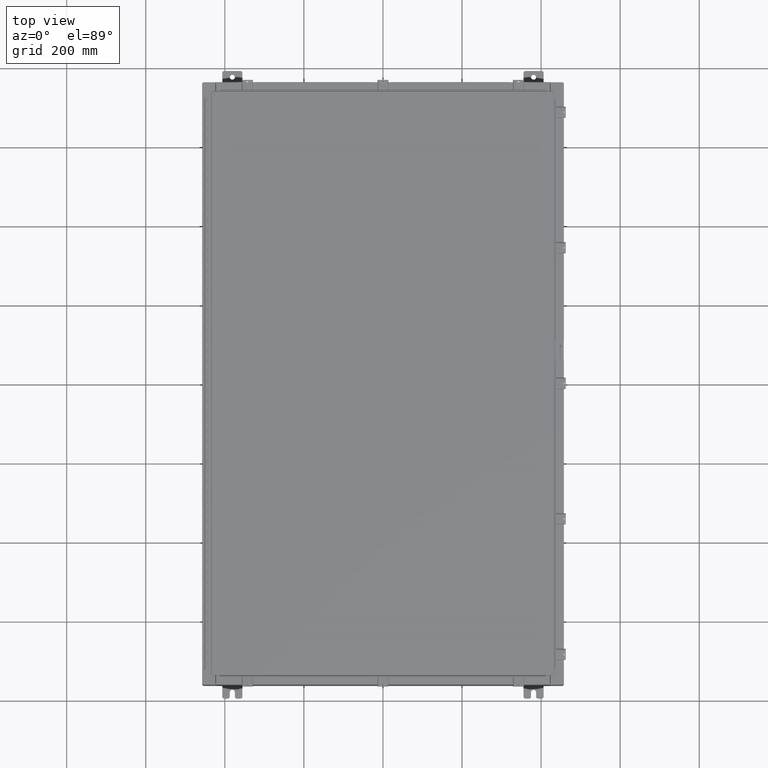
[diagram: clean part render]
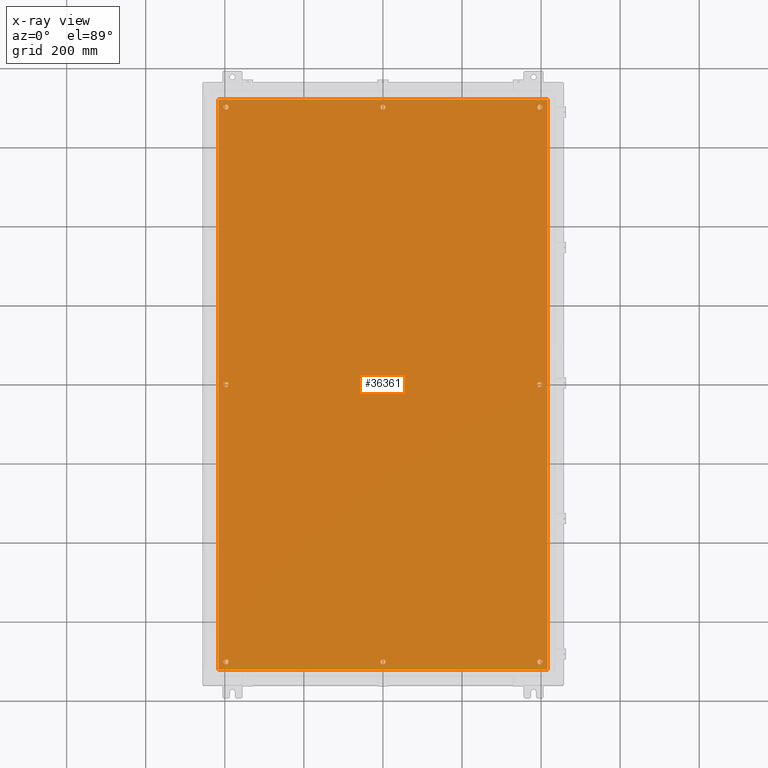
[diagram: x-ray — body ghosted, one internal face saturated and labeled with its STEP entity id]
A machine part, top view, then the same camera in x-ray: the body is ghosted and one INTERNAL B-rep face — a face not visible from any outside direction — is saturated and labeled: STEP entity #36361.
In plain terms, the highlighted planar face has unit normal (0, 0, -1).
Its self-contained STEP definition (entity closure, byte-faithful):
#211 = DIRECTION ( 'NONE',  ( -0.0000000000000000000, -0.0000000000000000000, 1.000000000000000000 ) ) ;
#215 = VERTEX_POINT ( 'NONE', #10817 ) ;
#480 = DIRECTION ( 'NONE',  ( -1.000000000000000000, 0.0000000000000000000, 0.0000000000000000000 ) ) ;
#630 = CARTESIAN_POINT ( 'NONE',  ( -15.87500000000000700, -7.992687152332741600E-016, -0.1040000000000000400 ) ) ;
#672 = EDGE_LOOP ( 'NONE', ( #19478, #46435 ) ) ;
#868 = EDGE_CURVE ( 'NONE', #57514, #1441, #31745, .T. ) ;
#1033 = VERTEX_POINT ( 'NONE', #58301 ) ;
#1142 = CARTESIAN_POINT ( 'NONE',  ( 16.38299999999999900, -28.38300000000000600, -0.1040000000000008600 ) ) ;
#1294 = DIRECTION ( 'NONE',  ( -0.0000000000000000000, -0.0000000000000000000, 1.000000000000000000 ) ) ;
#1441 = VERTEX_POINT ( 'NONE', #6716 ) ;
#1565 = VERTEX_POINT ( 'NONE', #55842 ) ;
#2333 = AXIS2_PLACEMENT_3D ( 'NONE', #42009, #12306, #47003 ) ;
#2775 = AXIS2_PLACEMENT_3D ( 'NONE', #63958, #34202, #4341 ) ;
#2991 = DIRECTION ( 'NONE',  ( -0.0000000000000000000, -0.0000000000000000000, 1.000000000000000000 ) ) ;
#3009 = CIRCLE ( 'NONE', #56694, 0.2499999999999987000 ) ;
#3353 = VERTEX_POINT ( 'NONE', #630 ) ;
#4341 = DIRECTION ( 'NONE',  ( -1.000000000000000000, 0.0000000000000000000, 0.0000000000000000000 ) ) ;
#4628 = CARTESIAN_POINT ( 'NONE',  ( -16.38299999999999900, 28.38299999999998800, -0.1040000000000008600 ) ) ;
#5101 = CIRCLE ( 'NONE', #41738, 0.2500000000000008900 ) ;
#5233 = EDGE_CURVE ( 'NONE', #56756, #20271, #47548, .T. ) ;
#5744 = LINE ( 'NONE', #4628, #42338 ) ;
#6278 = EDGE_CURVE ( 'NONE', #36631, #33521, #44349, .T. ) ;
#6688 = ORIENTED_EDGE ( 'NONE', *, *, #37745, .T. ) ;
#6716 = CARTESIAN_POINT ( 'NONE',  ( 15.37500000000000900, -27.62500000000000000, -0.1040000000000000400 ) ) ;
#7054 = DIRECTION ( 'NONE',  ( -0.0000000000000000000, -0.0000000000000000000, 1.000000000000000000 ) ) ;
#7397 = CIRCLE ( 'NONE', #34148, 0.2499999999999998600 ) ;
#7640 = CARTESIAN_POINT ( 'NONE',  ( 0.0000000000000000000, -27.62500000000000000, -0.1040000000000000400 ) ) ;
#9206 = ORIENTED_EDGE ( 'NONE', *, *, #5233, .T. ) ;
#9318 = EDGE_CURVE ( 'NONE', #3353, #215, #5101, .T. ) ;
#9447 = EDGE_CURVE ( 'NONE', #43044, #43879, #63491, .T. ) ;
#9587 = LINE ( 'NONE', #37507, #60927 ) ;
#10817 = CARTESIAN_POINT ( 'NONE',  ( -15.37500000000000500, -8.298848852119578500E-016, -0.1040000000000000400 ) ) ;
#11581 = VERTEX_POINT ( 'NONE', #61502 ) ;
#11963 = FACE_BOUND ( 'NONE', #52984, .T. ) ;
#12306 = DIRECTION ( 'NONE',  ( -0.0000000000000000000, -0.0000000000000000000, 1.000000000000000000 ) ) ;
#12544 = CARTESIAN_POINT ( 'NONE',  ( -16.50000000000000000, -28.38300000000000600, -0.1040000000000009900 ) ) ;
#12718 = DIRECTION ( 'NONE',  ( -1.000000000000000000, 0.0000000000000000000, 0.0000000000000000000 ) ) ;
#12790 = DIRECTION ( 'NONE',  ( -1.000000000000000000, -0.0000000000000000000, -0.0000000000000000000 ) ) ;
#13330 = CARTESIAN_POINT ( 'NONE',  ( 16.38299999999999900, 28.38299999999998800, -0.1040000000000008600 ) ) ;
#13548 = FACE_BOUND ( 'NONE', #42485, .T. ) ;
#13689 = ORIENTED_EDGE ( 'NONE', *, *, #41805, .T. ) ;
#14005 = EDGE_CURVE ( 'NONE', #43879, #43044, #52864, .T. ) ;
#14405 = CIRCLE ( 'NONE', #48284, 0.2500000000000008900 ) ;
#14850 = LINE ( 'NONE', #1142, #16409 ) ;
#14852 = PLANE ( 'NONE',  #42811 ) ;
#14912 = CIRCLE ( 'NONE', #42054, 0.2499999999999998600 ) ;
#15057 = CARTESIAN_POINT ( 'NONE',  ( 0.0000000000000000000, 0.0000000000000000000, -0.1040000000000000400 ) ) ;
#15995 = DIRECTION ( 'NONE',  ( -0.0000000000000000000, -0.0000000000000000000, 1.000000000000000000 ) ) ;
#16119 = CARTESIAN_POINT ( 'NONE',  ( 0.2500000000000011700, -27.62500000000000000, -0.1040000000000000400 ) ) ;
#16409 = VECTOR ( 'NONE', #30993, 39.37007874015748100 ) ;
#16971 = EDGE_LOOP ( 'NONE', ( #36899, #23760 ) ) ;
#17266 = AXIS2_PLACEMENT_3D ( 'NONE', #31147, #1294, #36134 ) ;
#17511 = ORIENTED_EDGE ( 'NONE', *, *, #50940, .T. ) ;
#18872 = AXIS2_PLACEMENT_3D ( 'NONE', #7640, #42423, #12718 ) ;
#19071 = EDGE_LOOP ( 'NONE', ( #35508, #13689 ) ) ;
#19478 = ORIENTED_EDGE ( 'NONE', *, *, #59856, .T. ) ;
#20057 = DIRECTION ( 'NONE',  ( -1.000000000000000000, 0.0000000000000000000, -0.0000000000000000000 ) ) ;
#20271 = VERTEX_POINT ( 'NONE', #50829 ) ;
#20887 = CARTESIAN_POINT ( 'NONE',  ( -15.62500000000000900, -27.62500000000000000, -0.1040000000000000400 ) ) ;
#21103 = EDGE_CURVE ( 'NONE', #56108, #63876, #9587, .T. ) ;
#21407 = ORIENTED_EDGE ( 'NONE', *, *, #9447, .T. ) ;
#21457 = CARTESIAN_POINT ( 'NONE',  ( -15.62500000000001100, 27.62500000000000000, -0.1040000000000000400 ) ) ;
#22693 = DIRECTION ( 'NONE',  ( -0.0000000000000000000, -0.0000000000000000000, 1.000000000000000000 ) ) ;
#23760 = ORIENTED_EDGE ( 'NONE', *, *, #9318, .T. ) ;
#24016 = DIRECTION ( 'NONE',  ( -0.0000000000000000000, -0.0000000000000000000, 1.000000000000000000 ) ) ;
#24272 = CARTESIAN_POINT ( 'NONE',  ( -15.62500000000000500, -8.298848852119578500E-016, -0.1040000000000000400 ) ) ;
#24547 = ORIENTED_EDGE ( 'NONE', *, *, #27087, .F. ) ;
#24954 = AXIS2_PLACEMENT_3D ( 'NONE', #60106, #30336, #480 ) ;
#25177 = FACE_BOUND ( 'NONE', #19071, .T. ) ;
#25835 = DIRECTION ( 'NONE',  ( -1.000000000000000000, 0.0000000000000000000, 0.0000000000000000000 ) ) ;
#26398 = DIRECTION ( 'NONE',  ( -1.000000000000000000, 0.0000000000000000000, 0.0000000000000000000 ) ) ;
#26504 = CARTESIAN_POINT ( 'NONE',  ( 0.0000000000000000000, 27.62500000000000000, -0.1040000000000000400 ) ) ;
#26530 = CARTESIAN_POINT ( 'NONE',  ( -15.87500000000001100, 27.62500000000000000, -0.1040000000000000400 ) ) ;
#27087 = EDGE_CURVE ( 'NONE', #63876, #1565, #5744, .T. ) ;
#27164 = CARTESIAN_POINT ( 'NONE',  ( -15.62500000000001100, 27.62500000000000000, -0.1040000000000000400 ) ) ;
#27646 = EDGE_CURVE ( 'NONE', #1441, #57514, #53579, .T. ) ;
#27899 = VERTEX_POINT ( 'NONE', #51082 ) ;
#28238 = EDGE_CURVE ( 'NONE', #1565, #57857, #42612, .T. ) ;
#28268 = FACE_BOUND ( 'NONE', #672, .T. ) ;
#28905 = AXIS2_PLACEMENT_3D ( 'NONE', #53751, #24016, #58763 ) ;
#29246 = DIRECTION ( 'NONE',  ( -1.000000000000000000, 0.0000000000000000000, 0.0000000000000000000 ) ) ;
#29348 = CARTESIAN_POINT ( 'NONE',  ( 0.2499999999999998600, 27.62500000000000000, -0.1040000000000000400 ) ) ;
#29393 = VECTOR ( 'NONE', #57260, 39.37007874015748100 ) ;
#30058 = CARTESIAN_POINT ( 'NONE',  ( -15.62500000000000500, -8.298848852119578500E-016, -0.1040000000000000400 ) ) ;
#30336 = DIRECTION ( 'NONE',  ( -0.0000000000000000000, -0.0000000000000000000, 1.000000000000000000 ) ) ;
#30706 = AXIS2_PLACEMENT_3D ( 'NONE', #45691, #15995, #50687 ) ;
#30993 = DIRECTION ( 'NONE',  ( 0.0000000000000000000, 1.000000000000000000, 0.0000000000000000000 ) ) ;
#31147 = CARTESIAN_POINT ( 'NONE',  ( 15.62500000000000500, 2.997136362123522700E-015, -0.1040000000000000400 ) ) ;
#31505 = DIRECTION ( 'NONE',  ( -1.000000000000000000, 0.0000000000000000000, 0.0000000000000000000 ) ) ;
#31745 = CIRCLE ( 'NONE', #2333, 0.2499999999999987000 ) ;
#32153 = DIRECTION ( 'NONE',  ( -1.000000000000000000, 0.0000000000000000000, 0.0000000000000000000 ) ) ;
#32788 = ORIENTED_EDGE ( 'NONE', *, *, #21103, .F. ) ;
#32842 = CARTESIAN_POINT ( 'NONE',  ( 15.62500000000000900, 27.62500000000000000, -0.1040000000000000400 ) ) ;
#33050 = ORIENTED_EDGE ( 'NONE', *, *, #28238, .F. ) ;
#33521 = VERTEX_POINT ( 'NONE', #26530 ) ;
#34148 = AXIS2_PLACEMENT_3D ( 'NONE', #52390, #22693, #57419 ) ;
#34202 = DIRECTION ( 'NONE',  ( -0.0000000000000000000, -0.0000000000000000000, 1.000000000000000000 ) ) ;
#35079 = DIRECTION ( 'NONE',  ( -1.000000000000000000, 0.0000000000000000000, 0.0000000000000000000 ) ) ;
#35508 = ORIENTED_EDGE ( 'NONE', *, *, #62417, .T. ) ;
#35772 = CARTESIAN_POINT ( 'NONE',  ( -15.37500000000000900, 27.62500000000000000, -0.1040000000000000400 ) ) ;
#36007 = EDGE_LOOP ( 'NONE', ( #6688, #56270 ) ) ;
#36134 = DIRECTION ( 'NONE',  ( -1.000000000000000000, 0.0000000000000000000, 0.0000000000000000000 ) ) ;
#36361 = ADVANCED_FACE ( 'NONE', ( #28268, #38365, #13548, #39902, #25177, #11963, #63261, #50010, #36818 ), #14852, .T. ) ;
#36528 = EDGE_CURVE ( 'NONE', #1033, #37713, #53874, .T. ) ;
#36631 = VERTEX_POINT ( 'NONE', #35772 ) ;
#36818 = FACE_OUTER_BOUND ( 'NONE', #46399, .T. ) ;
#36875 = CARTESIAN_POINT ( 'NONE',  ( 15.62500000000000500, 2.997136362123522700E-015, -0.1040000000000000400 ) ) ;
#36899 = ORIENTED_EDGE ( 'NONE', *, *, #51722, .T. ) ;
#37202 = CIRCLE ( 'NONE', #49638, 0.2500000000000008900 ) ;
#37387 = CARTESIAN_POINT ( 'NONE',  ( 16.38299999999999900, -28.38300000000000600, -0.1040000000000008600 ) ) ;
#37471 = VERTEX_POINT ( 'NONE', #29348 ) ;
#37507 = CARTESIAN_POINT ( 'NONE',  ( 16.50000000000000000, 28.38299999999999600, -0.1040000000000009900 ) ) ;
#37675 = CARTESIAN_POINT ( 'NONE',  ( 15.87500000000000700, 2.997136362123522700E-015, -0.1040000000000000400 ) ) ;
#37713 = VERTEX_POINT ( 'NONE', #16119 ) ;
#37745 = EDGE_CURVE ( 'NONE', #37471, #37813, #14912, .T. ) ;
#37813 = VERTEX_POINT ( 'NONE', #41894 ) ;
#37830 = DIRECTION ( 'NONE',  ( -1.000000000000000000, 0.0000000000000000000, 0.0000000000000000000 ) ) ;
#38208 = EDGE_CURVE ( 'NONE', #57857, #56108, #14850, .T. ) ;
#38365 = FACE_BOUND ( 'NONE', #36007, .T. ) ;
#39679 = DIRECTION ( 'NONE',  ( 0.0000000000000000000, -1.000000000000000000, 0.0000000000000000000 ) ) ;
#39902 = FACE_BOUND ( 'NONE', #16971, .T. ) ;
#41738 = AXIS2_PLACEMENT_3D ( 'NONE', #30058, #211, #35079 ) ;
#41805 = EDGE_CURVE ( 'NONE', #11581, #27899, #55581, .T. ) ;
#41839 = DIRECTION ( 'NONE',  ( -1.000000000000000000, 0.0000000000000000000, 0.0000000000000000000 ) ) ;
#41894 = CARTESIAN_POINT ( 'NONE',  ( -0.2499999999999998600, 27.62500000000000000, -0.1040000000000000400 ) ) ;
#42009 = CARTESIAN_POINT ( 'NONE',  ( 15.62500000000000900, -27.62500000000000000, -0.1040000000000000400 ) ) ;
#42054 = AXIS2_PLACEMENT_3D ( 'NONE', #26504, #61291, #31505 ) ;
#42338 = VECTOR ( 'NONE', #39679, 39.37007874015748100 ) ;
#42423 = DIRECTION ( 'NONE',  ( -0.0000000000000000000, -0.0000000000000000000, 1.000000000000000000 ) ) ;
#42485 = EDGE_LOOP ( 'NONE', ( #21407, #51747 ) ) ;
#42612 = LINE ( 'NONE', #12544, #29393 ) ;
#42811 = AXIS2_PLACEMENT_3D ( 'NONE', #15057, #49758, #20057 ) ;
#43044 = VERTEX_POINT ( 'NONE', #37675 ) ;
#43460 = CIRCLE ( 'NONE', #50593, 0.2499999999999987000 ) ;
#43879 = VERTEX_POINT ( 'NONE', #48632 ) ;
#44349 = CIRCLE ( 'NONE', #62400, 0.2500000000000008900 ) ;
#45691 = CARTESIAN_POINT ( 'NONE',  ( 15.62500000000000900, 27.62500000000000000, -0.1040000000000000400 ) ) ;
#46399 = EDGE_LOOP ( 'NONE', ( #33050, #24547, #32788, #53819 ) ) ;
#46435 = ORIENTED_EDGE ( 'NONE', *, *, #36528, .T. ) ;
#46476 = CARTESIAN_POINT ( 'NONE',  ( -16.38299999999999900, 28.38299999999998800, -0.1040000000000008600 ) ) ;
#47003 = DIRECTION ( 'NONE',  ( -1.000000000000000000, 0.0000000000000000000, 0.0000000000000000000 ) ) ;
#47548 = CIRCLE ( 'NONE', #30706, 0.2499999999999987000 ) ;
#48148 = CARTESIAN_POINT ( 'NONE',  ( 15.37500000000000900, 27.62500000000000000, -0.1040000000000000400 ) ) ;
#48284 = AXIS2_PLACEMENT_3D ( 'NONE', #27164, #61930, #32153 ) ;
#48632 = CARTESIAN_POINT ( 'NONE',  ( 15.37500000000000500, 3.027752532102206500E-015, -0.1040000000000000400 ) ) ;
#48699 = EDGE_LOOP ( 'NONE', ( #49451, #49518 ) ) ;
#49451 = ORIENTED_EDGE ( 'NONE', *, *, #6278, .T. ) ;
#49518 = ORIENTED_EDGE ( 'NONE', *, *, #58597, .T. ) ;
#49638 = AXIS2_PLACEMENT_3D ( 'NONE', #24272, #59029, #29246 ) ;
#49758 = DIRECTION ( 'NONE',  ( 0.0000000000000000000, 0.0000000000000000000, -1.000000000000000000 ) ) ;
#49933 = CIRCLE ( 'NONE', #18872, 0.2500000000000011700 ) ;
#50010 = FACE_BOUND ( 'NONE', #48699, .T. ) ;
#50593 = AXIS2_PLACEMENT_3D ( 'NONE', #20887, #55566, #25835 ) ;
#50687 = DIRECTION ( 'NONE',  ( -1.000000000000000000, 0.0000000000000000000, 0.0000000000000000000 ) ) ;
#50829 = CARTESIAN_POINT ( 'NONE',  ( 15.87500000000000700, 27.62500000000000000, -0.1040000000000000400 ) ) ;
#50940 = EDGE_CURVE ( 'NONE', #20271, #56756, #3009, .T. ) ;
#51082 = CARTESIAN_POINT ( 'NONE',  ( -15.37500000000000900, -27.62500000000000000, -0.1040000000000000400 ) ) ;
#51636 = ORIENTED_EDGE ( 'NONE', *, *, #868, .T. ) ;
#51722 = EDGE_CURVE ( 'NONE', #215, #3353, #37202, .T. ) ;
#51747 = ORIENTED_EDGE ( 'NONE', *, *, #14005, .T. ) ;
#52390 = CARTESIAN_POINT ( 'NONE',  ( 0.0000000000000000000, 27.62500000000000000, -0.1040000000000000400 ) ) ;
#52864 = CIRCLE ( 'NONE', #62804, 0.2500000000000008900 ) ;
#52984 = EDGE_LOOP ( 'NONE', ( #51636, #63672 ) ) ;
#53579 = CIRCLE ( 'NONE', #2775, 0.2499999999999987000 ) ;
#53606 = EDGE_LOOP ( 'NONE', ( #17511, #9206 ) ) ;
#53751 = CARTESIAN_POINT ( 'NONE',  ( -15.62500000000000900, -27.62500000000000000, -0.1040000000000000400 ) ) ;
#53819 = ORIENTED_EDGE ( 'NONE', *, *, #38208, .F. ) ;
#53874 = CIRCLE ( 'NONE', #24954, 0.2500000000000011700 ) ;
#55566 = DIRECTION ( 'NONE',  ( -0.0000000000000000000, -0.0000000000000000000, 1.000000000000000000 ) ) ;
#55581 = CIRCLE ( 'NONE', #28905, 0.2499999999999987000 ) ;
#55842 = CARTESIAN_POINT ( 'NONE',  ( -16.38299999999999900, -28.38300000000000600, -0.1040000000000009900 ) ) ;
#56108 = VERTEX_POINT ( 'NONE', #13330 ) ;
#56134 = DIRECTION ( 'NONE',  ( -0.0000000000000000000, -0.0000000000000000000, 1.000000000000000000 ) ) ;
#56270 = ORIENTED_EDGE ( 'NONE', *, *, #58034, .T. ) ;
#56694 = AXIS2_PLACEMENT_3D ( 'NONE', #32842, #2991, #37830 ) ;
#56756 = VERTEX_POINT ( 'NONE', #48148 ) ;
#57260 = DIRECTION ( 'NONE',  ( 1.000000000000000000, -0.0000000000000000000, -0.0000000000000000000 ) ) ;
#57419 = DIRECTION ( 'NONE',  ( -1.000000000000000000, 0.0000000000000000000, 0.0000000000000000000 ) ) ;
#57514 = VERTEX_POINT ( 'NONE', #64393 ) ;
#57857 = VERTEX_POINT ( 'NONE', #37387 ) ;
#58034 = EDGE_CURVE ( 'NONE', #37813, #37471, #7397, .T. ) ;
#58301 = CARTESIAN_POINT ( 'NONE',  ( -0.2500000000000011700, -27.62500000000000000, -0.1040000000000000400 ) ) ;
#58597 = EDGE_CURVE ( 'NONE', #33521, #36631, #14405, .T. ) ;
#58763 = DIRECTION ( 'NONE',  ( -1.000000000000000000, 0.0000000000000000000, 0.0000000000000000000 ) ) ;
#59029 = DIRECTION ( 'NONE',  ( -0.0000000000000000000, -0.0000000000000000000, 1.000000000000000000 ) ) ;
#59856 = EDGE_CURVE ( 'NONE', #37713, #1033, #49933, .T. ) ;
#60106 = CARTESIAN_POINT ( 'NONE',  ( 0.0000000000000000000, -27.62500000000000000, -0.1040000000000000400 ) ) ;
#60927 = VECTOR ( 'NONE', #12790, 39.37007874015748100 ) ;
#61291 = DIRECTION ( 'NONE',  ( -0.0000000000000000000, -0.0000000000000000000, 1.000000000000000000 ) ) ;
#61502 = CARTESIAN_POINT ( 'NONE',  ( -15.87500000000000700, -27.62500000000000000, -0.1040000000000000400 ) ) ;
#61930 = DIRECTION ( 'NONE',  ( -0.0000000000000000000, -0.0000000000000000000, 1.000000000000000000 ) ) ;
#62400 = AXIS2_PLACEMENT_3D ( 'NONE', #21457, #56134, #26398 ) ;
#62417 = EDGE_CURVE ( 'NONE', #27899, #11581, #43460, .T. ) ;
#62804 = AXIS2_PLACEMENT_3D ( 'NONE', #36875, #7054, #41839 ) ;
#63261 = FACE_BOUND ( 'NONE', #53606, .T. ) ;
#63491 = CIRCLE ( 'NONE', #17266, 0.2500000000000008900 ) ;
#63672 = ORIENTED_EDGE ( 'NONE', *, *, #27646, .T. ) ;
#63876 = VERTEX_POINT ( 'NONE', #46476 ) ;
#63958 = CARTESIAN_POINT ( 'NONE',  ( 15.62500000000000900, -27.62500000000000000, -0.1040000000000000400 ) ) ;
#64393 = CARTESIAN_POINT ( 'NONE',  ( 15.87500000000000700, -27.62500000000000000, -0.1040000000000000400 ) ) ;